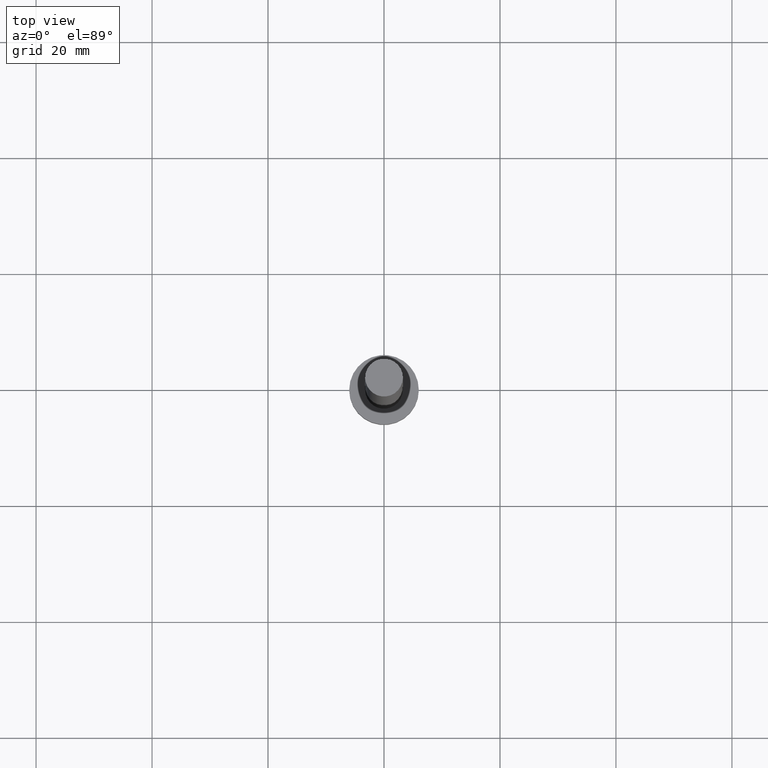
[diagram: clean part render]
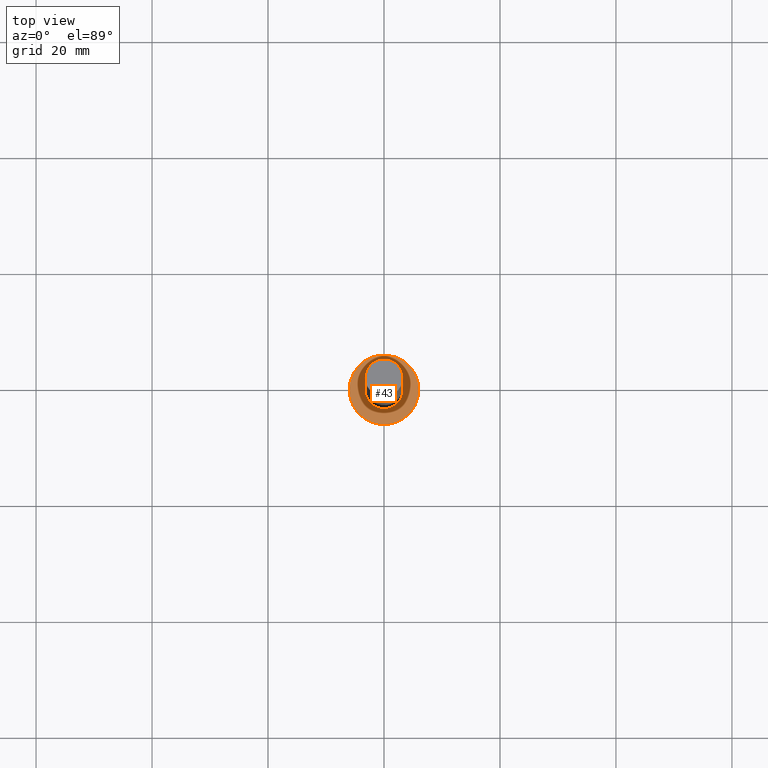
[diagram: same view with one face highlighted and labeled with its STEP entity id]
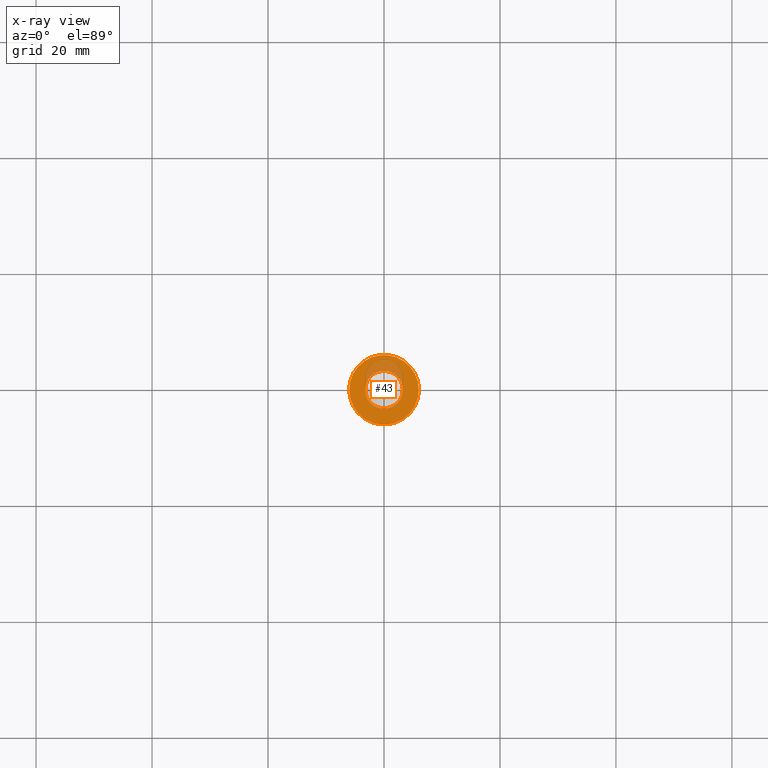
[diagram: x-ray of the same camera — body ghosted, the highlighted face saturated]
A machine part, top view. The second image highlights one B-rep face of the part: STEP entity #43.
The next image is the same camera in x-ray: the body ghosted, the highlighted face saturated — about 17% of this face is hidden behind the body in this view.
In plain terms, the highlighted planar face has unit normal (0, 0, 1).
Its self-contained STEP definition (entity closure, byte-faithful):
#9 = CARTESIAN_POINT ( 'NONE',  ( 0.000000000000000000, 0.000000000000000000, 5.000000000000000000 ) ) ;
#18 = DIRECTION ( 'NONE',  ( 1.000000000000000000, 0.000000000000000000, 0.000000000000000000 ) ) ;
#32 = FACE_OUTER_BOUND ( 'NONE', #160, .T. ) ;
#38 = DIRECTION ( 'NONE',  ( 0.000000000000000000, 0.000000000000000000, 1.000000000000000000 ) ) ;
#43 = ADVANCED_FACE ( 'NONE', ( #127, #32 ), #226, .T. ) ;
#51 = ORIENTED_EDGE ( 'NONE', *, *, #178, .F. ) ;
#59 = EDGE_CURVE ( 'NONE', #228, #241, #71, .T. ) ;
#64 = CARTESIAN_POINT ( 'NONE',  ( 0.000000000000000000, 0.000000000000000000, 5.000000000000000000 ) ) ;
#69 = ORIENTED_EDGE ( 'NONE', *, *, #59, .T. ) ;
#71 = CIRCLE ( 'NONE', #243, 6.000000000000000888 ) ;
#73 = ORIENTED_EDGE ( 'NONE', *, *, #157, .T. ) ;
#80 = AXIS2_PLACEMENT_3D ( 'NONE', #112, #38, #18 ) ;
#87 = DIRECTION ( 'NONE',  ( 0.000000000000000000, 0.000000000000000000, 1.000000000000000000 ) ) ;
#103 = CIRCLE ( 'NONE', #250, 6.000000000000000888 ) ;
#106 = DIRECTION ( 'NONE',  ( 0.000000000000000000, 0.000000000000000000, 1.000000000000000000 ) ) ;
#112 = CARTESIAN_POINT ( 'NONE',  ( 0.000000000000000000, 0.000000000000000000, 5.000000000000000000 ) ) ;
#116 = CARTESIAN_POINT ( 'NONE',  ( -3.250000000000000444, 0.000000000000000000, 5.000000000000000000 ) ) ;
#119 = DIRECTION ( 'NONE',  ( 0.000000000000000000, 0.000000000000000000, 1.000000000000000000 ) ) ;
#121 = AXIS2_PLACEMENT_3D ( 'NONE', #177, #119, #201 ) ;
#127 = FACE_BOUND ( 'NONE', #167, .T. ) ;
#135 = CIRCLE ( 'NONE', #121, 3.250000000000000444 ) ;
#143 = CARTESIAN_POINT ( 'NONE',  ( 6.000000000000000888, 7.347880794884120722E-16, 5.000000000000000000 ) ) ;
#157 = EDGE_CURVE ( 'NONE', #241, #228, #103, .T. ) ;
#160 = EDGE_LOOP ( 'NONE', ( #73, #69 ) ) ;
#166 = EDGE_CURVE ( 'NONE', #190, #221, #135, .T. ) ;
#167 = EDGE_LOOP ( 'NONE', ( #205, #51 ) ) ;
#172 = CARTESIAN_POINT ( 'NONE',  ( 3.250000000000000444, 3.980102097228898231E-16, 5.000000000000000000 ) ) ;
#174 = CARTESIAN_POINT ( 'NONE',  ( -6.000000000000000888, 0.000000000000000000, 5.000000000000000000 ) ) ;
#177 = CARTESIAN_POINT ( 'NONE',  ( 0.000000000000000000, 0.000000000000000000, 5.000000000000000000 ) ) ;
#178 = EDGE_CURVE ( 'NONE', #221, #190, #192, .T. ) ;
#188 = DIRECTION ( 'NONE',  ( 1.000000000000000000, 0.000000000000000000, -0.000000000000000000 ) ) ;
#190 = VERTEX_POINT ( 'NONE', #116 ) ;
#192 = CIRCLE ( 'NONE', #80, 3.250000000000000444 ) ;
#199 = DIRECTION ( 'NONE',  ( 0.000000000000000000, 0.000000000000000000, 1.000000000000000000 ) ) ;
#201 = DIRECTION ( 'NONE',  ( 1.000000000000000000, 0.000000000000000000, 0.000000000000000000 ) ) ;
#205 = ORIENTED_EDGE ( 'NONE', *, *, #166, .F. ) ;
#206 = CARTESIAN_POINT ( 'NONE',  ( 0.000000000000000000, 0.000000000000000000, 5.000000000000000000 ) ) ;
#216 = DIRECTION ( 'NONE',  ( 1.000000000000000000, 0.000000000000000000, 0.000000000000000000 ) ) ;
#221 = VERTEX_POINT ( 'NONE', #172 ) ;
#226 = PLANE ( 'NONE',  #238 ) ;
#228 = VERTEX_POINT ( 'NONE', #143 ) ;
#236 = DIRECTION ( 'NONE',  ( 1.000000000000000000, 0.000000000000000000, 0.000000000000000000 ) ) ;
#238 = AXIS2_PLACEMENT_3D ( 'NONE', #206, #106, #188 ) ;
#241 = VERTEX_POINT ( 'NONE', #174 ) ;
#243 = AXIS2_PLACEMENT_3D ( 'NONE', #9, #87, #236 ) ;
#250 = AXIS2_PLACEMENT_3D ( 'NONE', #64, #199, #216 ) ;